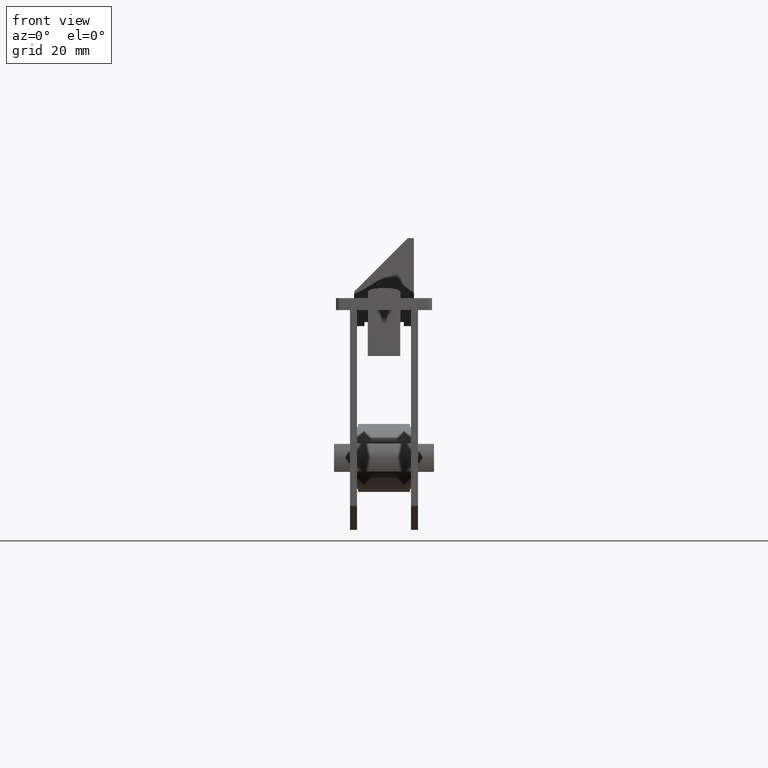
[diagram: clean part render]
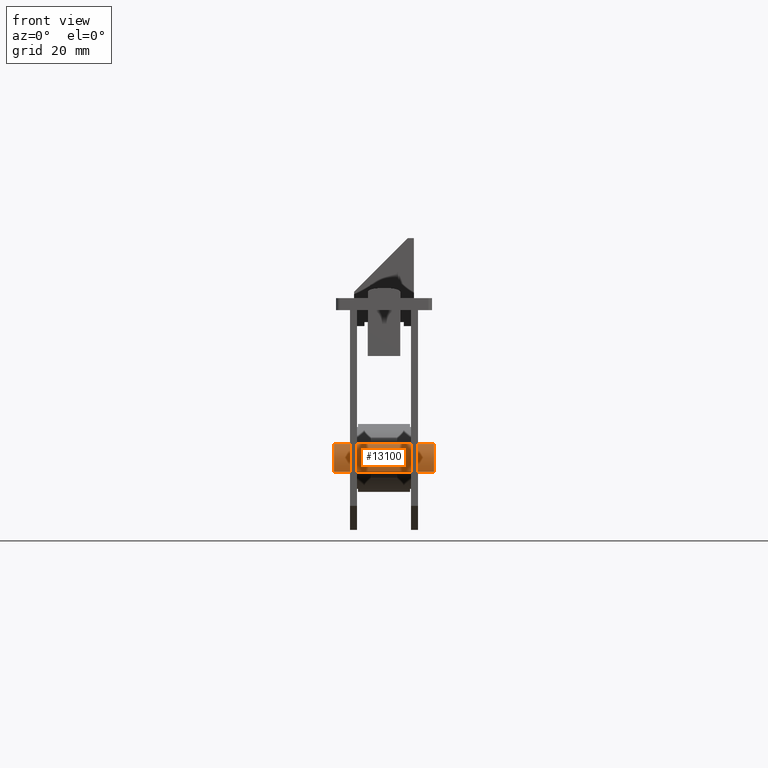
[diagram: same view with one face highlighted and labeled with its STEP entity id]
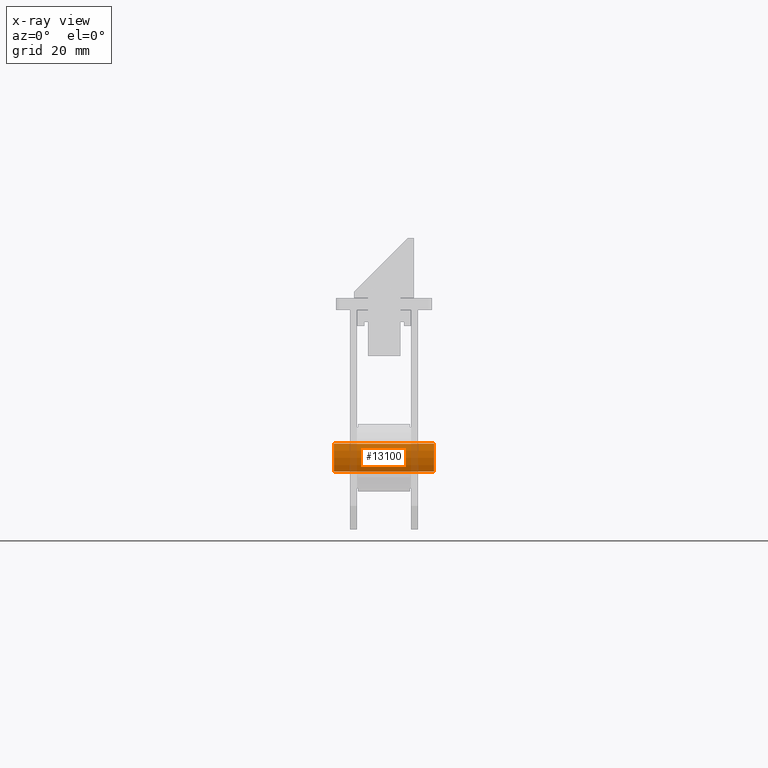
[diagram: x-ray of the same camera — body ghosted, the highlighted face saturated]
A machine part, front view. The second image highlights one B-rep face of the part: STEP entity #13100.
The next image is the same camera in x-ray: the body ghosted, the highlighted face saturated — about 14% of this face is hidden behind the body in this view.
In plain terms, the highlighted cylindrical surface (edge-blend (fillet) strip) has radius 7.5 mm, axis along (1, 0, 0).
Its self-contained STEP definition (entity closure, byte-faithful):
#378 = DIRECTION ( 'NONE',  ( 2.312964634635741478E-16, 1.000000000000000000, 0.000000000000000000 ) ) ;
#1751 = DIRECTION ( 'NONE',  ( 1.000000000000000000, 0.000000000000000000, 0.000000000000000000 ) ) ;
#3812 = VERTEX_POINT ( 'NONE', #8957 ) ;
#4424 = DIRECTION ( 'NONE',  ( 1.000000000000000000, 0.000000000000000000, 0.000000000000000000 ) ) ;
#4908 = DIRECTION ( 'NONE',  ( 0.000000000000000000, 0.000000000000000000, -1.000000000000000000 ) ) ;
#5389 = EDGE_CURVE ( 'NONE', #6569, #19306, #8353, .T. ) ;
#6569 = VERTEX_POINT ( 'NONE', #7420 ) ;
#6991 = CARTESIAN_POINT ( 'NONE',  ( 12.49999999999998046, -5.133249580710833371, -35.00000000000002842 ) ) ;
#7420 = CARTESIAN_POINT ( 'NONE',  ( -12.49999999999998401, -5.133249580710833371, -42.00000000000002132 ) ) ;
#8353 = LINE ( 'NONE', #10927, #13558 ) ;
#8729 = FACE_OUTER_BOUND ( 'NONE', #9385, .T. ) ;
#8797 = CARTESIAN_POINT ( 'NONE',  ( 12.49999999999998046, -5.133249580710833371, -42.00000000000002132 ) ) ;
#8957 = CARTESIAN_POINT ( 'NONE',  ( -12.49999999999998401, -5.133249580710833371, -35.00000000000002842 ) ) ;
#9287 = ORIENTED_EDGE ( 'NONE', *, *, #15960, .F. ) ;
#9385 = EDGE_LOOP ( 'NONE', ( #12426, #14956, #11200, #9287 ) ) ;
#9590 = DIRECTION ( 'NONE',  ( 1.000000000000000000, 0.000000000000000000, 0.000000000000000000 ) ) ;
#9684 = AXIS2_PLACEMENT_3D ( 'NONE', #12010, #4424, #12137 ) ;
#10927 = CARTESIAN_POINT ( 'NONE',  ( -27.90175425099136675, -5.133249580710833371, -42.00000000000002132 ) ) ;
#11200 = ORIENTED_EDGE ( 'NONE', *, *, #20031, .F. ) ;
#12010 = CARTESIAN_POINT ( 'NONE',  ( -27.90175425099136675, 1.499999999999973577, -38.50000000000002842 ) ) ;
#12137 = DIRECTION ( 'NONE',  ( 0.000000000000000000, 0.000000000000000000, -1.000000000000000000 ) ) ;
#12426 = ORIENTED_EDGE ( 'NONE', *, *, #16344, .F. ) ;
#13100 = ADVANCED_FACE ( 'NONE', ( #8729 ), #18844, .T. ) ;
#13429 = VECTOR ( 'NONE', #15254, 1000.000000000000000 ) ;
#13470 = AXIS2_PLACEMENT_3D ( 'NONE', #14278, #1751, #4908 ) ;
#13558 = VECTOR ( 'NONE', #9590, 1000.000000000000000 ) ;
#14278 = CARTESIAN_POINT ( 'NONE',  ( 12.49999999999998046, 1.499999999999973577, -38.50000000000002842 ) ) ;
#14393 = CIRCLE ( 'NONE', #15765, 7.500000000000003553 ) ;
#14609 = DIRECTION ( 'NONE',  ( -1.000000000000000000, 1.667602476305508856E-16, -0.000000000000000000 ) ) ;
#14956 = ORIENTED_EDGE ( 'NONE', *, *, #5389, .T. ) ;
#15254 = DIRECTION ( 'NONE',  ( 1.000000000000000000, 0.000000000000000000, 0.000000000000000000 ) ) ;
#15765 = AXIS2_PLACEMENT_3D ( 'NONE', #19176, #14609, #378 ) ;
#15922 = CIRCLE ( 'NONE', #13470, 7.500000000000007105 ) ;
#15960 = EDGE_CURVE ( 'NONE', #3812, #16820, #17607, .T. ) ;
#16344 = EDGE_CURVE ( 'NONE', #6569, #3812, #14393, .T. ) ;
#16820 = VERTEX_POINT ( 'NONE', #6991 ) ;
#17607 = LINE ( 'NONE', #18388, #13429 ) ;
#18388 = CARTESIAN_POINT ( 'NONE',  ( -27.90175425099136675, -5.133249580710833371, -35.00000000000002842 ) ) ;
#18844 = CYLINDRICAL_SURFACE ( 'NONE', #9684, 7.500000000000007105 ) ;
#19176 = CARTESIAN_POINT ( 'NONE',  ( -12.49999999999998224, 1.499999999999973577, -38.50000000000002842 ) ) ;
#19306 = VERTEX_POINT ( 'NONE', #8797 ) ;
#20031 = EDGE_CURVE ( 'NONE', #16820, #19306, #15922, .T. ) ;